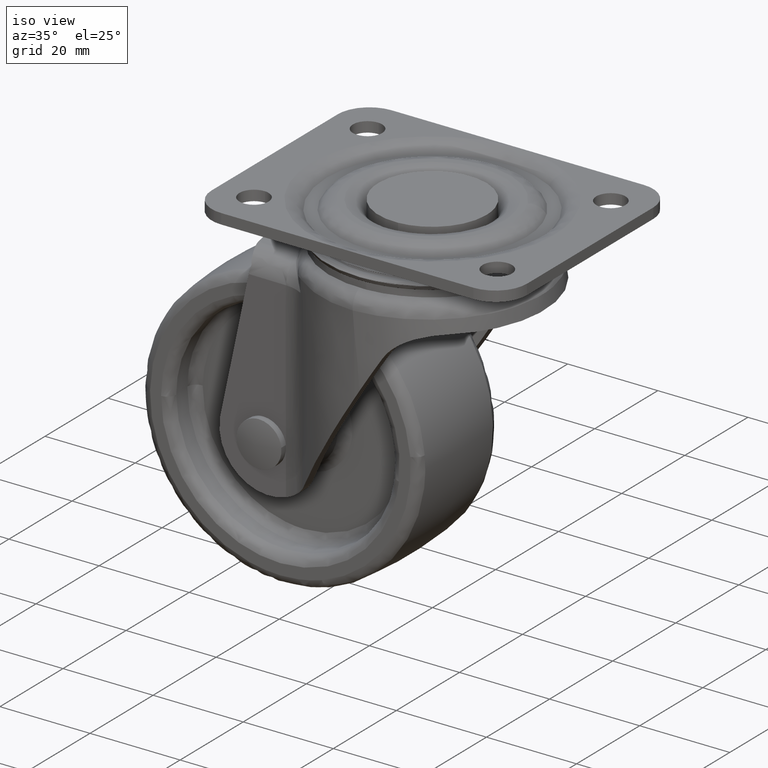
[diagram: clean part render]
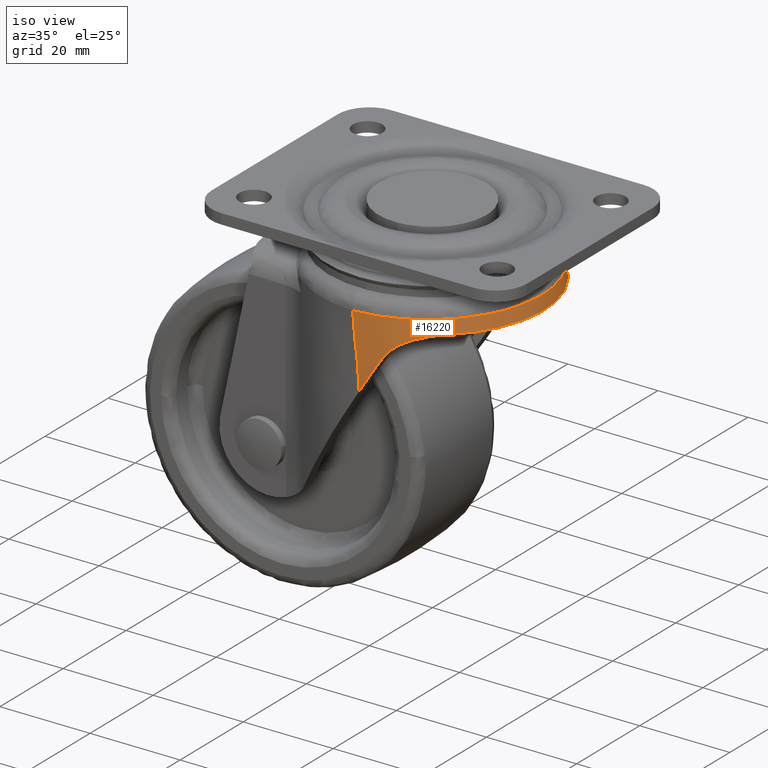
[diagram: same view with one face highlighted and labeled with its STEP entity id]
A machine part, iso view. The second image highlights one B-rep face of the part: STEP entity #16220.
In plain terms, the highlighted face is a freeform B-spline surface patch.
Its self-contained STEP definition (entity closure, byte-faithful):
#12591=CARTESIAN_POINT('',(-0.374123405536636,24.747172038186800,-13.036091615854801));
#12592=VERTEX_POINT('',#12591);
#12770=CARTESIAN_POINT('',(-0.372490450672473,-24.747196701459401,-13.035959580757240));
#12771=VERTEX_POINT('',#12770);
#12789=CARTESIAN_POINT('',(-0.374123405536636,24.747172038186800,-13.036091615854801));
#12790=CARTESIAN_POINT('',(-0.130458357808917,24.741544482917838,-13.032389946790310));
#12791=CARTESIAN_POINT('',(0.355813692695487,24.730313808410010,-13.025002682087971));
#12792=CARTESIAN_POINT('',(1.082644272773470,24.687084002757238,-13.013935448175060));
#12793=CARTESIAN_POINT('',(1.804834377046261,24.624905831932349,-13.002969377928860));
#12794=CARTESIAN_POINT('',(2.521788524342565,24.542194482832780,-12.992141906778389));
#12795=CARTESIAN_POINT('',(3.232962482304202,24.439775020553419,-12.981491260380659));
#12796=CARTESIAN_POINT('',(3.937818590192311,24.317848533367989,-12.971049535610200));
#12797=CARTESIAN_POINT('',(4.635837978741973,24.176798777337719,-12.960844751499060));
#12798=CARTESIAN_POINT('',(5.326517606978340,24.016976541934898,-12.950900514134419));
#12799=CARTESIAN_POINT('',(6.009371303302414,23.838756126778129,-12.941236317745080));
#12800=CARTESIAN_POINT('',(6.683929704557595,23.642519399308618,-12.931867677019479));
#12801=CARTESIAN_POINT('',(7.349740453058637,23.428659135496670,-12.922806304410550));
#12802=CARTESIAN_POINT('',(8.006368290527048,23.197577237915208,-12.914060275062530));
#12803=CARTESIAN_POINT('',(8.653395145956882,22.949684327541650,-12.905634194179241));
#12804=CARTESIAN_POINT('',(9.290420192540250,22.685398981344171,-12.897529362467180));
#12805=CARTESIAN_POINT('',(9.917059881251266,22.405147076371200,-12.889743940415871));
#12806=CARTESIAN_POINT('',(10.532947950024811,22.109361118620729,-12.882273110822860));
#12807=CARTESIAN_POINT('',(11.137735409926201,21.798479589704279,-12.875109239425210));
#12808=CARTESIAN_POINT('',(11.731090508545670,21.472946303849621,-12.868242033123110));
#12809=CARTESIAN_POINT('',(12.312698673093200,21.133209775705449,-12.861658696446749));
#12810=CARTESIAN_POINT('',(12.882262427954990,20.779722607628120,-12.855344082755931));
#12811=CARTESIAN_POINT('',(13.439501309929661,20.412940864462769,-12.849280852153640));
#12812=CARTESIAN_POINT('',(13.984151698979719,20.033323557004550,-12.843449590768939));
#12813=CARTESIAN_POINT('',(14.515966872780520,19.641331786922720,-12.837829058549019));
#12814=CARTESIAN_POINT('',(15.034716146764101,19.237429211858789,-12.832395945524020));
#12815=CARTESIAN_POINT('',(15.540187320711620,18.822077687058862,-12.827126432947180));
#12816=CARTESIAN_POINT('',(16.032176798002169,18.395750845316940,-12.821991051185270));
#12817=CARTESIAN_POINT('',(16.510525298437589,17.958881293532041,-12.816974352867540));
#12818=CARTESIAN_POINT('',(17.996397118231702,16.529416141139890,-12.801069135436920));
#12819=CARTESIAN_POINT('',(20.231106405518030,13.839944251130250,-12.777948408507870));
#12820=CARTESIAN_POINT('',(22.561868195208419,9.523807492263385,-12.756407204733691));
#12821=CARTESIAN_POINT('',(23.993296327419021,4.848010729088862,-12.744476706387969));
#12822=CARTESIAN_POINT('',(24.474723874414231,-0.008665492077881,-12.740888424551970));
#12823=CARTESIAN_POINT('',(23.990228497122910,-4.865948260870710,-12.744576615940410));
#12824=CARTESIAN_POINT('',(22.554635305592349,-9.543106351715748,-12.756666511912330));
#12825=CARTESIAN_POINT('',(20.219265988969980,-13.859068627631210,-12.778281490666391));
#12826=CARTESIAN_POINT('',(17.861483621136600,-16.691376132349550,-12.802759263937890));
#12827=CARTESIAN_POINT('',(16.083591613923691,-18.360374793667219,-12.821653651945820));
#12828=CARTESIAN_POINT('',(15.157670411913060,-19.148650290056629,-12.831250190442899));
#12829=CARTESIAN_POINT('',(14.185494377837079,-19.897412837932830,-12.841423835690390));
#12830=CARTESIAN_POINT('',(13.168404240075830,-20.603757814157269,-12.852294575218460));
#12831=CARTESIAN_POINT('',(12.108027012047470,-21.264673354008409,-12.864009449480720));
#12832=CARTESIAN_POINT('',(11.006168945158221,-21.877213664393349,-12.876678629840850));
#12833=CARTESIAN_POINT('',(9.864848166488333,-22.438467790613991,-12.890388614095370));
#12834=CARTESIAN_POINT('',(8.686288420223562,-22.945588841863689,-12.905194322240710));
#12835=CARTESIAN_POINT('',(7.472922038185852,-23.395791661307548,-12.921116741997730));
#12836=CARTESIAN_POINT('',(6.227390115393146,-23.786419473917860,-12.938139085370549));
#12837=CARTESIAN_POINT('',(4.952538818826319,-24.114766371924588,-12.956202727267691));
#12838=CARTESIAN_POINT('',(3.651428136892319,-24.378820858177960,-12.975205128075830));
#12839=CARTESIAN_POINT('',(2.327287740419298,-24.574531182005732,-12.994989658779190));
#12840=CARTESIAN_POINT('',(0.983667482278854,-24.706215679880881,-13.015366063020750));
#12841=CARTESIAN_POINT('',(0.080786570143916,-24.733499362145320,-13.029076482453631));
#12842=CARTESIAN_POINT('',(-0.372490450672473,-24.747196701459401,-13.035959580757240));
#12843=B_SPLINE_CURVE_WITH_KNOTS('',3,(#12789,#12790,#12791,#12792,#12793,#12794,#12795,#12796,#12797,#12798,#12799,#12800,#12801,#12802,#12803,#12804,#12805,#12806,#12807,#12808,#12809,#12810,#12811,#12812,#12813,#12814,#12815,#12816,#12817,#12818,#12819,#12820,#12821,#12822,#12823,#12824,#12825,#12826,#12827,#12828,#12829,#12830,#12831,#12832,#12833,#12834,#12835,#12836,#12837,#12838,#12839,#12840,#12841,#12842),.UNSPECIFIED.,.F.,.U.,(4,1,1,1,1,1,1,1,1,1,1,1,1,1,1,1,1,1,1,1,1,1,1,1,1,1,1,1,1,1,1,1,1,1,1,1,1,1,1,1,1,1,1,1,1,1,1,1,1,1,1,4),(0.0,0.009442116681211,0.018843233703363,0.028203289980840,0.037522225925448,0.046799983733348,0.056036507667265,0.065231744333329,0.074385642951931,0.083498155621978,0.092569237577956,0.101598847439252,0.110586947451162,0.119533503717109,0.128438486421558,0.137301870043179,0.146123633557860,0.154903760631141,0.163642239799764,0.172339064641978,0.180994233936362,0.189607751808888,0.198179627868043,0.206709877327841,0.215198521118585,0.223645585985304,0.232051104573805,0.240415115504328,0.248737663432825,0.311926334616222,0.374857012576574,0.437568144037476,0.500106792519258,0.562687560567406,0.625432358919227,0.688388312192617,0.751593919322072,0.767145727228615,0.782841441120179,0.798681297887720,0.814665463038795,0.830794032688197,0.847067036066244,0.863484438537450,0.880046145116743,0.896752004464897,0.913601813339430,0.930595321471984,0.947732236838279,0.965012231282224,0.982434946451680,1.0),.UNSPECIFIED.);
#12844=EDGE_CURVE('',#12592,#12771,#12843,.T.);
#15259=CARTESIAN_POINT('',(1.059833744774484,24.750000000000000,-28.873798671630450));
#15260=VERTEX_POINT('',#15259);
#15268=CARTESIAN_POINT('',(5.846178269025740,24.169048228928499,-21.204667369981049));
#15269=VERTEX_POINT('',#15268);
#15270=CARTESIAN_POINT('',(1.059833744774481,24.750000000000000,-28.873798671630450));
#15271=CARTESIAN_POINT('',(1.856218763067649,24.750000000000000,-27.597755703764030));
#15272=CARTESIAN_POINT('',(2.653200976864202,24.706818037493139,-26.320755853102199));
#15273=CARTESIAN_POINT('',(4.248570288356179,24.518869885030970,-23.764505114681320));
#15274=CARTESIAN_POINT('',(5.046956278167305,24.374183803880658,-22.485256002078689));
#15275=CARTESIAN_POINT('',(5.846178269025740,24.169048228928510,-21.204667369981049));
#15276=B_SPLINE_CURVE_WITH_KNOTS('',3,(#15270,#15271,#15272,#15273,#15274,#15275),.UNSPECIFIED.,.F.,.U.,(4,2,4),(0.0,0.500000000000000,1.0),.UNSPECIFIED.);
#15277=EDGE_CURVE('',#15260,#15269,#15276,.T.);
#15403=CARTESIAN_POINT('',(5.846178269025740,-24.169048228928499,-21.204667369981049));
#15404=VERTEX_POINT('',#15403);
#15410=CARTESIAN_POINT('',(1.059833744774484,-24.750000000000000,-28.873798671630450));
#15411=VERTEX_POINT('',#15410);
#15412=CARTESIAN_POINT('',(5.846178269025740,-24.169048228928510,-21.204667369981049));
#15413=CARTESIAN_POINT('',(5.046956278167306,-24.374183803880658,-22.485256002078689));
#15414=CARTESIAN_POINT('',(4.248570288356179,-24.518869885030970,-23.764505114681320));
#15415=CARTESIAN_POINT('',(2.653200976864202,-24.706818037493139,-26.320755853102192));
#15416=CARTESIAN_POINT('',(1.856218763067646,-24.750000000000000,-27.597755703764030));
#15417=CARTESIAN_POINT('',(1.059833744774479,-24.750000000000000,-28.873798671630450));
#15418=B_SPLINE_CURVE_WITH_KNOTS('',3,(#15412,#15413,#15414,#15415,#15416,#15417),.UNSPECIFIED.,.F.,.U.,(4,2,4),(0.0,0.500000000000000,1.0),.UNSPECIFIED.);
#15419=EDGE_CURVE('',#15404,#15411,#15418,.T.);
#15493=CARTESIAN_POINT('',(16.732215000000000,18.168811623262901,-15.750389999999999));
#15494=VERTEX_POINT('',#15493);
#15495=CARTESIAN_POINT('',(16.732215000000000,-18.168811623262901,-15.750389999999999));
#15496=VERTEX_POINT('',#15495);
#15497=CARTESIAN_POINT('',(16.732215000000000,18.168811623262890,-15.750389999999999));
#15498=CARTESIAN_POINT('',(16.890088959969340,18.024215368374989,-15.750389999999999));
#15499=CARTESIAN_POINT('',(17.046629920706959,17.877078324604199,-15.750389999999999));
#15500=CARTESIAN_POINT('',(17.355363098272100,17.579256017535030,-15.750389999999999));
#15501=CARTESIAN_POINT('',(17.507473176557721,17.428663695648709,-15.750389999999999));
#15502=CARTESIAN_POINT('',(17.957107868722439,16.971898348820272,-15.750389999999999));
#15503=CARTESIAN_POINT('',(18.247941489476251,16.660740332273139,-15.750389999999999));
#15504=CARTESIAN_POINT('',(19.094095166780932,15.707636835498031,-15.750389999999999));
#15505=CARTESIAN_POINT('',(19.623135653791021,15.046112283659740,-15.750389999999999));
#15506=CARTESIAN_POINT('',(20.611648976487210,13.671233182352561,-15.750389999999999));
#15507=CARTESIAN_POINT('',(21.071124817855480,12.957880872207490,-15.750389999999999));
#15508=CARTESIAN_POINT('',(21.706923389303750,11.848056479575890,-15.750390000000010));
#15509=CARTESIAN_POINT('',(21.910030429562038,11.471282822893780,-15.750389999999999));
#15510=CARTESIAN_POINT('',(22.297585944926510,10.704883829359620,-15.750389999999999));
#15511=CARTESIAN_POINT('',(22.480496893741591,10.318323139794691,-15.750389999999999));
#15512=CARTESIAN_POINT('',(22.997320803829030,9.148771376290243,-15.750389999999999));
#15513=CARTESIAN_POINT('',(23.299408029306441,8.355936342155186,-15.750389999999999));
#15514=CARTESIAN_POINT('',(23.820213993050459,6.744479719413839,-15.750389999999999));
#15515=CARTESIAN_POINT('',(24.038931685254578,5.925857807251858,-15.750389999999999));
#15516=CARTESIAN_POINT('',(24.303643698713309,4.678325773590491,-15.750389999999999));
#15517=CARTESIAN_POINT('',(24.381299668524338,4.259208858762671,-15.750389999999999));
#15518=CARTESIAN_POINT('',(24.481610993364971,3.625531159920188,-15.750389999999999));
#15519=CARTESIAN_POINT('',(24.512351243052571,3.413471099901658,-15.750389999999999));
#15520=CARTESIAN_POINT('',(24.568370058817671,2.987661636485330,-15.750389999999999));
#15521=CARTESIAN_POINT('',(24.593535642016239,2.774760117756783,-15.750389999999999));
#15522=CARTESIAN_POINT('',(24.705212634725530,1.711067651959693,-15.750389999999999));
#15523=CARTESIAN_POINT('',(24.749499844019439,0.861870739317540,-15.750389999999999));
#15524=CARTESIAN_POINT('',(24.750493392123889,-0.833107550623558,-15.750389999999999));
#15525=CARTESIAN_POINT('',(24.707193886343418,-1.678888699991399,-15.750389999999999));
#15526=CARTESIAN_POINT('',(24.532688036829050,-3.367022751093982,-15.750389999999991));
#15527=CARTESIAN_POINT('',(24.401491024922830,-4.209376016757371,-15.750389999999999));
#15528=CARTESIAN_POINT('',(24.048001278221349,-5.890529938257131,-15.750389999999999));
#15529=CARTESIAN_POINT('',(23.828750415281569,-6.714760309128755,-15.750389999999999));
#15530=CARTESIAN_POINT('',(23.308650930782878,-8.330532765469002,-15.750389999999991));
#15531=CARTESIAN_POINT('',(23.007749327082021,-9.122277162303121,-15.750389999999999));
#15532=CARTESIAN_POINT('',(22.324702017986411,-10.673663903825030,-15.750389999999999));
#15533=CARTESIAN_POINT('',(21.942560629871149,-11.433307954403240,-15.750389999999999));
#15534=CARTESIAN_POINT('',(21.306805387974080,-12.548061297493639,-15.750389999999991));
#15535=CARTESIAN_POINT('',(21.083994838750190,-12.916142470657970,-15.750389999999999));
#15536=CARTESIAN_POINT('',(20.621213997188370,-13.637482051580569,-15.750389999999999));
#15537=CARTESIAN_POINT('',(20.380900667959011,-13.991421321201329,-15.750389999999999));
#15538=CARTESIAN_POINT('',(19.633431447807620,-15.033228216244520,-15.750389999999999));
#15539=CARTESIAN_POINT('',(19.099816538618050,-15.701137890187480,-15.750389999999999));
#15540=CARTESIAN_POINT('',(18.388403352452428,-16.502538318089190,-15.750389999999999));
#15541=CARTESIAN_POINT('',(18.243767262743042,-16.661276201841151,-15.750389999999999));
#15542=CARTESIAN_POINT('',(17.950609973516670,-16.974740262422539,-15.750389999999999));
#15543=CARTESIAN_POINT('',(17.802315951351609,-17.129231457713761,-15.750389999999999));
#15544=CARTESIAN_POINT('',(17.352352542430321,-17.586067175474881,-15.750389999999999));
#15545=CARTESIAN_POINT('',(17.045605329427602,-17.881778423094079,-15.750389999999991));
#15546=CARTESIAN_POINT('',(16.732214999999989,-18.168811623262901,-15.750389999999999));
#15547=B_SPLINE_CURVE_WITH_KNOTS('',3,(#15497,#15498,#15499,#15500,#15501,#15502,#15503,#15504,#15505,#15506,#15507,#15508,#15509,#15510,#15511,#15512,#15513,#15514,#15515,#15516,#15517,#15518,#15519,#15520,#15521,#15522,#15523,#15524,#15525,#15526,#15527,#15528,#15529,#15530,#15531,#15532,#15533,#15534,#15535,#15536,#15537,#15538,#15539,#15540,#15541,#15542,#15543,#15544,#15545,#15546),.UNSPECIFIED.,.F.,.U.,(4,2,2,2,2,2,2,2,2,2,2,2,2,2,2,2,2,2,2,2,2,2,2,2,4),(0.0,0.015625000000000,0.031250000000000,0.062500000000000,0.125000000000000,0.187500000000000,0.218750000000000,0.250000000000000,0.312500000000000,0.375000000000000,0.406250000000000,0.421875000000000,0.437500000000000,0.500000000000000,0.562500000000000,0.625000000000000,0.687500000000000,0.750000000000000,0.812500000000000,0.843750000000000,0.875000000000000,0.937500000000000,0.953125000000000,0.968750000000000,1.0),.UNSPECIFIED.);
#15548=EDGE_CURVE('',#15494,#15496,#15547,.T.);
#15634=CARTESIAN_POINT('',(8.648219478329450,-23.260183114111250,-18.269844432147650));
#15635=VERTEX_POINT('',#15634);
#15636=CARTESIAN_POINT('',(8.648219478329450,-23.260183114111250,-18.269844432147650));
#15637=CARTESIAN_POINT('',(8.372661645794636,-23.368422411819878,-18.460083094379620));
#15638=CARTESIAN_POINT('',(8.106907282246420,-23.467190005719001,-18.663950832774610));
#15639=CARTESIAN_POINT('',(7.595597111725457,-23.648010538350139,-19.098776641858208));
#15640=CARTESIAN_POINT('',(7.350038904520523,-23.730060243149499,-19.329733339393499));
#15641=CARTESIAN_POINT('',(6.880218363650375,-23.879360442675871,-19.819210299257069));
#15642=CARTESIAN_POINT('',(6.655950869006774,-23.946609025389151,-20.077725826142281));
#15643=CARTESIAN_POINT('',(6.336806704875359,-24.037648463939131,-20.487071678143550));
#15644=CARTESIAN_POINT('',(6.233519258214598,-24.066291441463669,-20.626879357764359));
#15645=CARTESIAN_POINT('',(6.034460528082626,-24.120116191157500,-20.911593725632301));
#15646=CARTESIAN_POINT('',(5.938504745327912,-24.145350876983521,-21.056733207324640));
#15647=CARTESIAN_POINT('',(5.846178269025724,-24.169048228928510,-21.204667369981031));
#15648=B_SPLINE_CURVE_WITH_KNOTS('',3,(#15636,#15637,#15638,#15639,#15640,#15641,#15642,#15643,#15644,#15645,#15646,#15647),.UNSPECIFIED.,.F.,.U.,(4,2,2,2,2,4),(0.0,0.250000000000001,0.500000000000001,0.750000000000001,0.875000000000001,1.0),.UNSPECIFIED.);
#15649=EDGE_CURVE('',#15635,#15404,#15648,.T.);
#15691=CARTESIAN_POINT('',(8.648219478329450,23.260183114111150,-18.269844432147650));
#15692=VERTEX_POINT('',#15691);
#15693=CARTESIAN_POINT('',(5.846178269025736,24.169048228928510,-21.204667369981038));
#15694=CARTESIAN_POINT('',(6.030824909999713,24.121655145038901,-20.908809157756039));
#15695=CARTESIAN_POINT('',(6.228734558532389,24.068434868098549,-20.626067643608540));
#15696=CARTESIAN_POINT('',(6.649362409462963,23.948530014034031,-20.085805080916192));
#15697=CARTESIAN_POINT('',(6.872086130781795,23.881847266838289,-19.828288352969391));
#15698=CARTESIAN_POINT('',(7.341364420504150,23.732910851313061,-19.338186457934651));
#15699=CARTESIAN_POINT('',(7.587921126047126,23.650660783788151,-19.105602190759921));
#15700=CARTESIAN_POINT('',(7.975353132380754,23.513744240693029,-18.775681876717631));
#15701=CARTESIAN_POINT('',(8.107203807581346,23.465921037906259,-18.669091220984718));
#15702=CARTESIAN_POINT('',(8.374628218410475,23.366242478059039,-18.463833493613159));
#15703=CARTESIAN_POINT('',(8.510421197128679,23.314310369524058,-18.364977132359240));
#15704=CARTESIAN_POINT('',(8.648219478329427,23.260183114111140,-18.269844432147629));
#15705=B_SPLINE_CURVE_WITH_KNOTS('',3,(#15693,#15694,#15695,#15696,#15697,#15698,#15699,#15700,#15701,#15702,#15703,#15704),.UNSPECIFIED.,.F.,.U.,(4,2,2,2,2,4),(0.0,0.250000000000000,0.500000000000000,0.750000000000000,0.875000000000000,1.0),.UNSPECIFIED.);
#15706=EDGE_CURVE('',#15269,#15692,#15705,.T.);
#15748=CARTESIAN_POINT('',(8.648219478329443,23.260183114111129,-18.269844432147661));
#15749=CARTESIAN_POINT('',(9.312664774085185,22.999188565282982,-17.811126989685061));
#15750=CARTESIAN_POINT('',(9.992105077651013,22.697887711882149,-17.424975169988421));
#15751=CARTESIAN_POINT('',(11.024179923341530,22.180488859826440,-16.939939486808228));
#15752=CARTESIAN_POINT('',(11.370393785000189,21.997107742048922,-16.794042206789189));
#15753=CARTESIAN_POINT('',(11.892031483195399,21.704930184031522,-16.597626847633229));
#15754=CARTESIAN_POINT('',(12.153431200273801,21.554563403252612,-16.505031781131841));
#15755=CARTESIAN_POINT('',(12.415532368400729,21.397625936171998,-16.420662997770290));
#15756=CARTESIAN_POINT('',(12.590403999620380,21.291522427524828,-16.366226205346020));
#15757=CARTESIAN_POINT('',(12.677851771933669,21.237763924822868,-16.339932438171498));
#15758=CARTESIAN_POINT('',(13.461603451699601,20.749627599419849,-16.112386065292679));
#15759=CARTESIAN_POINT('',(14.141560919485631,20.281203962029021,-15.972282056741729));
#15760=CARTESIAN_POINT('',(15.465074789994510,19.276353425927230,-15.791193596398800));
#15761=CARTESIAN_POINT('',(16.108657673165720,18.739925784114099,-15.750389999999999));
#15762=CARTESIAN_POINT('',(16.732214999999989,18.168811623262890,-15.750389999999999));
#15763=B_SPLINE_CURVE_WITH_KNOTS('',3,(#15748,#15749,#15750,#15751,#15752,#15753,#15754,#15755,#15756,#15757,#15758,#15759,#15760,#15761,#15762),.UNSPECIFIED.,.F.,.U.,(4,2,2,1,2,2,2,4),(0.0,0.249999999999999,0.374999999999998,0.437499999999998,0.468749999999998,0.499999999999998,0.749999999999999,1.0),.UNSPECIFIED.);
#15764=EDGE_CURVE('',#15692,#15494,#15763,.T.);
#15810=CARTESIAN_POINT('',(16.732214999999989,-18.168811623262879,-15.750389999999999));
#15811=CARTESIAN_POINT('',(16.108680094564800,-18.739905248426410,-15.750389999999999));
#15812=CARTESIAN_POINT('',(15.465186207433570,-19.276254998543180,-15.791192052938561));
#15813=CARTESIAN_POINT('',(14.142022564388521,-20.280867297689738,-15.972205197453411));
#15814=CARTESIAN_POINT('',(13.462326086804060,-20.749130374132921,-16.112236736929660));
#15815=CARTESIAN_POINT('',(12.591954736711310,-21.291274069865160,-16.364855837564772));
#15816=CARTESIAN_POINT('',(12.416582259873820,-21.397678808260469,-16.419388441976821));
#15817=CARTESIAN_POINT('',(12.067225905935819,-21.604148022308578,-16.535573393340179));
#15818=CARTESIAN_POINT('',(11.892866608619180,-21.704454823250909,-16.597323596810192));
#15819=CARTESIAN_POINT('',(11.370972127910820,-21.996798941568990,-16.793802104246510));
#15820=CARTESIAN_POINT('',(11.024615993900090,-22.180264094094209,-16.939745099537671));
#15821=CARTESIAN_POINT('',(9.992202521343817,-22.697851163277349,-17.424908291625801));
#15822=CARTESIAN_POINT('',(9.312654460861136,-22.999192616324159,-17.811134109692969));
#15823=CARTESIAN_POINT('',(8.648219478329450,-23.260183114111250,-18.269844432147650));
#15824=B_SPLINE_CURVE_WITH_KNOTS('',3,(#15810,#15811,#15812,#15813,#15814,#15815,#15816,#15817,#15818,#15819,#15820,#15821,#15822,#15823),.UNSPECIFIED.,.F.,.U.,(4,2,2,2,2,2,4),(0.0,0.249999999999999,0.499999999999999,0.562499999999999,0.624999999999999,0.749999999999999,1.0),.UNSPECIFIED.);
#15825=EDGE_CURVE('',#15496,#15635,#15824,.T.);
#16139=CARTESIAN_POINT('',(-2.410625938698309,24.501276373967546,-29.775716610485716));
#16140=CARTESIAN_POINT('',(-2.676179793942119,24.501276373967546,-21.313012353926638));
#16141=CARTESIAN_POINT('',(-4.322111513238232,24.501276373967542,-13.007665223346667));
#16142=CARTESIAN_POINT('',(25.825469706500105,28.536772285691281,-28.889687295470509));
#16143=CARTESIAN_POINT('',(25.486976233818893,28.536772285691288,-18.102533972289997));
#16144=CARTESIAN_POINT('',(23.388956820961333,28.536772285691285,-7.515959021337963));
#16145=CARTESIAN_POINT('',(25.825469706500098,0.0,-28.889687295470495));
#16146=CARTESIAN_POINT('',(25.486976233818904,0.0,-18.102533972289997));
#16147=CARTESIAN_POINT('',(23.388956820961337,0.0,-7.515959021337963));
#16148=CARTESIAN_POINT('',(25.825469706500108,-28.536770126530843,-28.889687295470495));
#16149=CARTESIAN_POINT('',(25.486976233818886,-28.536770126530833,-18.102533972289990));
#16150=CARTESIAN_POINT('',(23.388956820961326,-28.536770126530833,-7.515959021337964));
#16151=CARTESIAN_POINT('',(-2.410624104405808,-24.501276636124114,-29.775716552926870));
#16152=CARTESIAN_POINT('',(-2.676177964387972,-24.501276636124118,-21.313012145365352));
#16153=CARTESIAN_POINT('',(-4.322109713052914,-24.501276636124118,-13.007664866590705));
#16161=(BOUNDED_SURFACE()B_SPLINE_SURFACE(2,2,((#16139,#16142,#16145,#16148,#16151),(#16140,#16143,#16146,#16149,#16152),(#16141,#16144,#16147,#16150,#16153)),.UNSPECIFIED.,.F.,.F.,.U.)B_SPLINE_SURFACE_WITH_KNOTS((3,3),(3,2,3),(39.942839001464847,61.491319323730472),(0.454272283720971,45.639623089179089,90.824971662354471),.UNSPECIFIED.)GEOMETRIC_REPRESENTATION_ITEM()RATIONAL_B_SPLINE_SURFACE(((0.958948640931407,0.630489337293204,0.965620063258084,0.630489353849600,0.958948608477792),(0.955731754067357,0.628374299239559,0.962380796456328,0.628374315740414,0.955731721722611),(0.958980825282752,0.630510497853306,0.965652471516519,0.630510514410257,0.958980792828047)))REPRESENTATION_ITEM('')SURFACE());
#16162=CARTESIAN_POINT('',(-4.546351E-015,24.750000000000000,-17.471764074454700));
#16163=VERTEX_POINT('',#16162);
#16164=CARTESIAN_POINT('',(-0.374123405536636,24.747172038186800,-13.036091615854801));
#16165=CARTESIAN_POINT('',(-0.304098007749451,24.748225039740561,-13.774532578334890));
#16166=CARTESIAN_POINT('',(-0.237902708641855,24.748926852938862,-14.513360218456979));
#16167=CARTESIAN_POINT('',(-0.113179523707196,24.749811896634949,-15.991986157464110));
#16168=CARTESIAN_POINT('',(-0.054796528262350,24.749994938938130,-16.731809021003240));
#16169=CARTESIAN_POINT('',(-4.546351E-015,24.750000000000000,-17.471764074454700));
#16170=B_SPLINE_CURVE_WITH_KNOTS('',3,(#16164,#16165,#16166,#16167,#16168,#16169),.UNSPECIFIED.,.F.,.U.,(4,2,4),(0.000162477279425,0.500000000000001,1.0),.UNSPECIFIED.);
#16171=EDGE_CURVE('',#12592,#16163,#16170,.T.);
#16172=ORIENTED_EDGE('',*,*,#16171,.F.);
#16173=ORIENTED_EDGE('',*,*,#12844,.T.);
#16174=CARTESIAN_POINT('',(1.515450E-015,-24.750000000000000,-17.471764074454700));
#16175=VERTEX_POINT('',#16174);
#16176=CARTESIAN_POINT('',(1.515450E-015,-24.750000000000000,-17.471764074454700));
#16177=CARTESIAN_POINT('',(-0.054524606804560,-24.749999044530060,-16.731784609135929));
#16178=CARTESIAN_POINT('',(-0.112635606626264,-24.749820109346551,-15.991937327188440));
#16179=CARTESIAN_POINT('',(-0.236814497760052,-24.748943282842749,-14.513267379447459));
#16180=CARTESIAN_POINT('',(-0.302737444350111,-24.748245583165779,-13.774420143289690));
#16181=CARTESIAN_POINT('',(-0.372490450672473,-24.747196701459401,-13.035959580757240));
#16182=B_SPLINE_CURVE_WITH_KNOTS('',3,(#16176,#16177,#16178,#16179,#16180,#16181),.UNSPECIFIED.,.F.,.U.,(4,2,4),(0.000165735571988,0.500165735571988,1.0),.UNSPECIFIED.);
#16183=EDGE_CURVE('',#16175,#12771,#16182,.T.);
#16184=ORIENTED_EDGE('',*,*,#16183,.F.);
#16185=CARTESIAN_POINT('',(1.059833744774488,-24.750000000000000,-28.873798671630450));
#16186=CARTESIAN_POINT('',(0.837287625421734,-24.750000000000000,-23.144210867187130));
#16187=CARTESIAN_POINT('',(0.0,-24.750000000000000,-17.471764074454690));
#16195=(BOUNDED_CURVE()B_SPLINE_CURVE(2,(#16185,#16186,#16187),.UNSPECIFIED.,.F.,.U.)CURVE()GEOMETRIC_REPRESENTATION_ITEM()QUASI_UNIFORM_CURVE()RATIONAL_B_SPLINE_CURVE((1.0,0.998549743531077,1.0))REPRESENTATION_ITEM(''));
#16196=EDGE_CURVE('',#15411,#16175,#16195,.T.);
#16197=ORIENTED_EDGE('',*,*,#16196,.F.);
#16198=ORIENTED_EDGE('',*,*,#15419,.F.);
#16199=ORIENTED_EDGE('',*,*,#15649,.F.);
#16200=ORIENTED_EDGE('',*,*,#15825,.F.);
#16201=ORIENTED_EDGE('',*,*,#15548,.F.);
#16202=ORIENTED_EDGE('',*,*,#15764,.F.);
#16203=ORIENTED_EDGE('',*,*,#15706,.F.);
#16204=ORIENTED_EDGE('',*,*,#15277,.F.);
#16205=CARTESIAN_POINT('',(-1.387779E-014,24.750000000000000,-17.471764074454640));
#16206=CARTESIAN_POINT('',(0.837287625421734,24.750000000000000,-23.144210867187173));
#16207=CARTESIAN_POINT('',(1.059833744774488,24.750000000000000,-28.873798671630428));
#16215=(BOUNDED_CURVE()B_SPLINE_CURVE(2,(#16205,#16206,#16207),.UNSPECIFIED.,.F.,.U.)CURVE()GEOMETRIC_REPRESENTATION_ITEM()QUASI_UNIFORM_CURVE()RATIONAL_B_SPLINE_CURVE((1.0,0.998549743531077,1.0))REPRESENTATION_ITEM(''));
#16216=EDGE_CURVE('',#16163,#15260,#16215,.T.);
#16217=ORIENTED_EDGE('',*,*,#16216,.F.);
#16218=EDGE_LOOP('',(#16172,#16173,#16184,#16197,#16198,#16199,#16200,#16201,#16202,#16203,#16204,#16217));
#16219=FACE_OUTER_BOUND('',#16218,.T.);
#16220=ADVANCED_FACE('',(#16219),#16161,.T.);